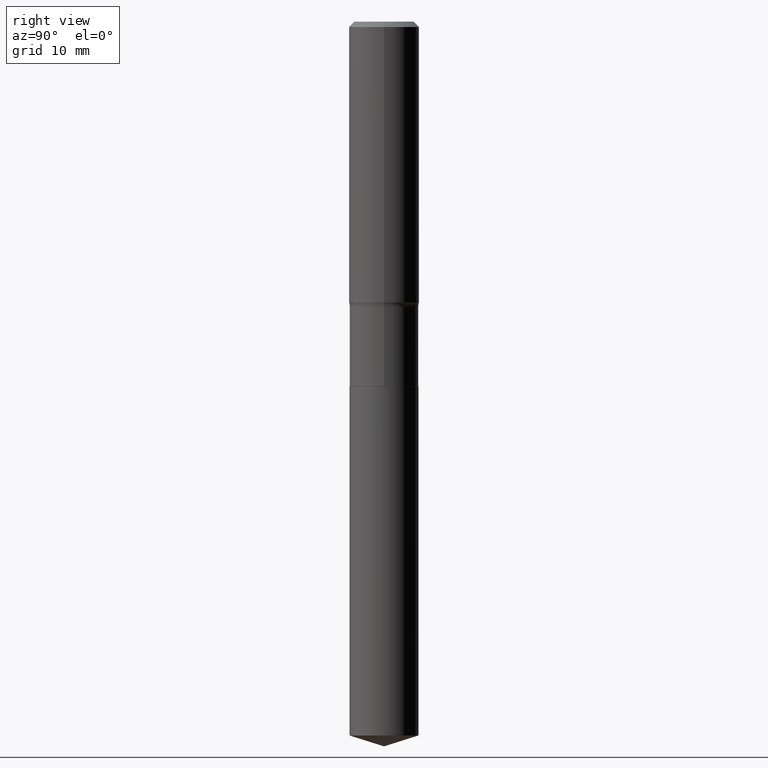
[diagram: clean part render]
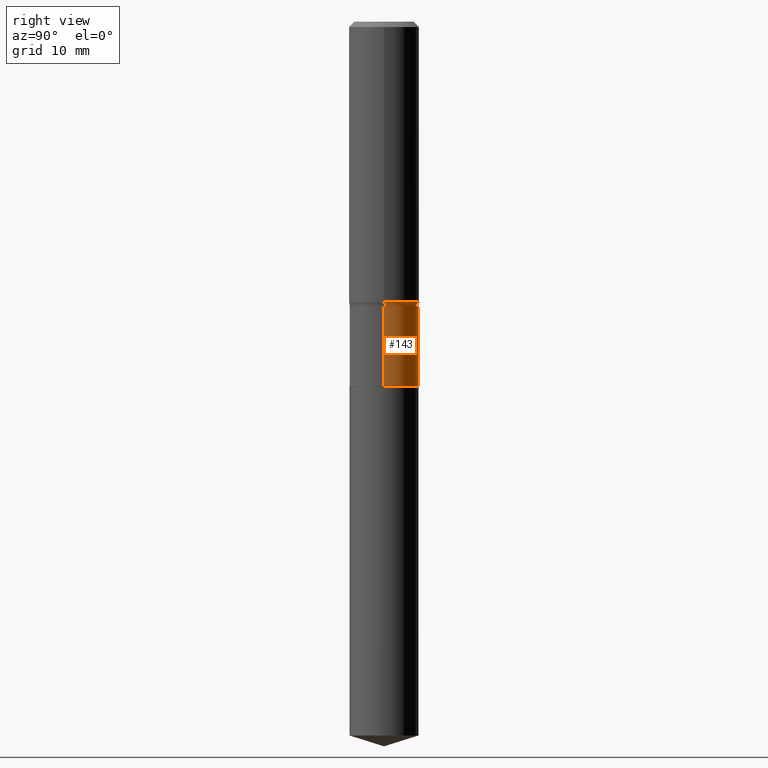
[diagram: same view with one face highlighted and labeled with its STEP entity id]
A machine part, right view. The second image highlights one B-rep face of the part: STEP entity #143.
In plain terms, the highlighted cylindrical surface (edge-blend (fillet) strip) has radius 4.8997 mm, axis along (-0, 0, 1).
Its self-contained STEP definition (entity closure, byte-faithful):
#3 = EDGE_LOOP ( 'NONE', ( #14, #150, #79, #184 ) ) ;
#14 = ORIENTED_EDGE ( 'NONE', *, *, #112, .T. ) ;
#22 = EDGE_CURVE ( 'NONE', #254, #371, #113, .T. ) ;
#54 = VECTOR ( 'NONE', #189, 39.37007874015748143 ) ;
#61 = CARTESIAN_POINT ( 'NONE',  ( 0.1928999999999999049, -6.918021124783804133E-15, -1.595600000000000351 ) ) ;
#66 = CARTESIAN_POINT ( 'NONE',  ( 3.901990027149005041E-29, -5.571007624258123859E-15, -1.595600000000000351 ) ) ;
#74 = CIRCLE ( 'NONE', #186, 0.1928999999999999049 ) ;
#79 = ORIENTED_EDGE ( 'NONE', *, *, #367, .F. ) ;
#84 = DIRECTION ( 'NONE',  ( -2.445468806185136877E-29, 3.491481338843145188E-15, 1.000000000000000000 ) ) ;
#112 = EDGE_CURVE ( 'NONE', #254, #389, #293, .T. ) ;
#113 = LINE ( 'NONE', #459, #54 ) ;
#125 = AXIS2_PLACEMENT_3D ( 'NONE', #444, #213, #136 ) ;
#134 = CYLINDRICAL_SURFACE ( 'NONE', #125, 0.1928999999999999326 ) ;
#136 = DIRECTION ( 'NONE',  ( 1.000000000000000000, -6.982962677686267499E-15, 4.876176775795936353E-29 ) ) ;
#143 = ADVANCED_FACE ( 'NONE', ( #329 ), #134, .T. ) ;
#145 = AXIS2_PLACEMENT_3D ( 'NONE', #208, #446, #364 ) ;
#150 = ORIENTED_EDGE ( 'NONE', *, *, #478, .T. ) ;
#157 = DIRECTION ( 'NONE',  ( -2.445468806185136597E-29, 3.491481338843145583E-15, 1.000000000000000000 ) ) ;
#184 = ORIENTED_EDGE ( 'NONE', *, *, #22, .F. ) ;
#186 = AXIS2_PLACEMENT_3D ( 'NONE', #66, #157, #436 ) ;
#189 = DIRECTION ( 'NONE',  ( -2.445468806185136877E-29, 3.491481338843145188E-15, 1.000000000000000000 ) ) ;
#208 = CARTESIAN_POINT ( 'NONE',  ( 4.985821802050256763E-29, -7.118432153633405364E-15, -2.038800000000000168 ) ) ;
#213 = DIRECTION ( 'NONE',  ( -2.445468806185136597E-29, 3.491481338843145583E-15, 1.000000000000000000 ) ) ;
#240 = CARTESIAN_POINT ( 'NONE',  ( 0.1928999999999999881, -8.465445654159086427E-15, -2.038800000000000168 ) ) ;
#248 = CARTESIAN_POINT ( 'NONE',  ( -0.1928999999999999049, -4.974082951664532029E-15, -1.595600000000000351 ) ) ;
#254 = VERTEX_POINT ( 'NONE', #240 ) ;
#291 = VECTOR ( 'NONE', #84, 39.37007874015748143 ) ;
#293 = CIRCLE ( 'NONE', #145, 0.1928999999999999881 ) ;
#321 = CARTESIAN_POINT ( 'NONE',  ( -0.1928999999999999326, 1.370636937281232780E-15, -9.488625789101710361E-30 ) ) ;
#329 = FACE_OUTER_BOUND ( 'NONE', #3, .T. ) ;
#364 = DIRECTION ( 'NONE',  ( 1.000000000000000000, -6.982962677686269077E-15, 0.000000000000000000 ) ) ;
#367 = EDGE_CURVE ( 'NONE', #371, #489, #74, .T. ) ;
#371 = VERTEX_POINT ( 'NONE', #61 ) ;
#389 = VERTEX_POINT ( 'NONE', #401 ) ;
#401 = CARTESIAN_POINT ( 'NONE',  ( -0.1928999999999999881, -4.974082951664532029E-15, -2.038800000000000168 ) ) ;
#436 = DIRECTION ( 'NONE',  ( 1.000000000000000000, -6.982962677686267499E-15, 0.000000000000000000 ) ) ;
#439 = LINE ( 'NONE', #321, #291 ) ;
#444 = CARTESIAN_POINT ( 'NONE',  ( 0.000000000000000000, 0.000000000000000000, 0.000000000000000000 ) ) ;
#446 = DIRECTION ( 'NONE',  ( -2.445468806185136597E-29, 3.491481338843145583E-15, 1.000000000000000000 ) ) ;
#459 = CARTESIAN_POINT ( 'NONE',  ( 0.1928999999999999326, -1.347013500525680471E-15, 9.406145000510357801E-30 ) ) ;
#478 = EDGE_CURVE ( 'NONE', #389, #489, #439, .T. ) ;
#489 = VERTEX_POINT ( 'NONE', #248 ) ;